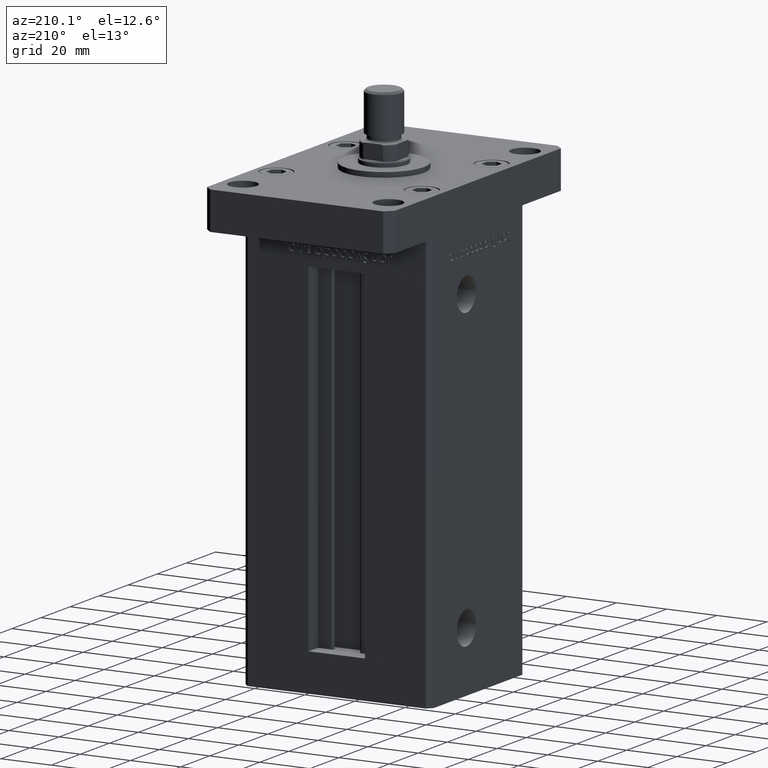
[diagram: clean part render]
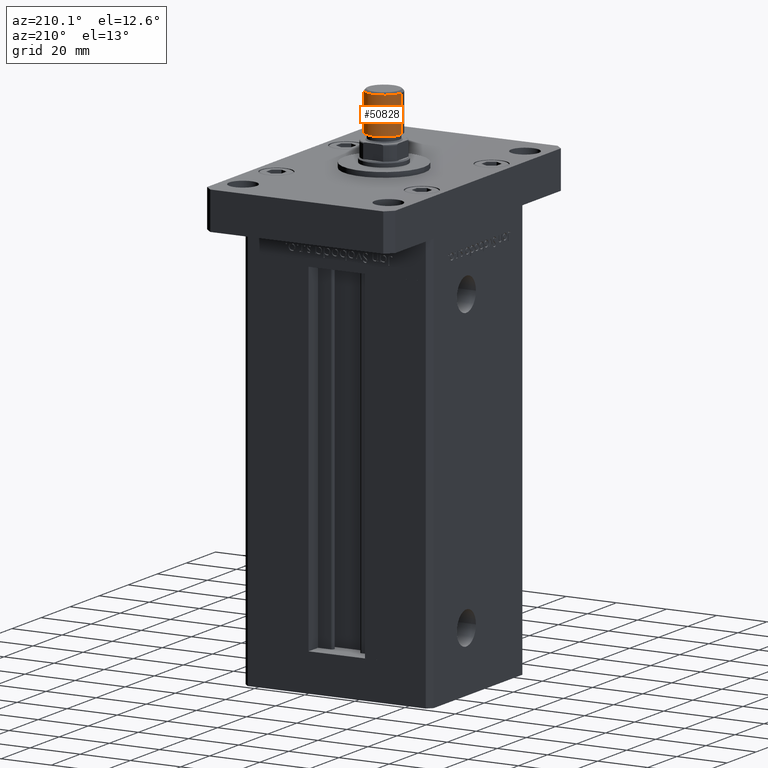
[diagram: same view with one face highlighted and labeled with its STEP entity id]
A machine part, auxiliary view. The second image highlights one B-rep face of the part: STEP entity #50828.
In plain terms, the highlighted cylindrical surface (edge-blend (fillet) strip) has radius 7 mm, axis along (-0, 0, 1).
Its self-contained STEP definition (entity closure, byte-faithful):
#2062 = EDGE_CURVE ( 'NONE', #48687, #9628, #6065, .T. ) ;
#2148 = CIRCLE ( 'NONE', #21380, 7.000000000000000000 ) ;
#6065 = LINE ( 'NONE', #30364, #35634 ) ;
#7193 = CYLINDRICAL_SURFACE ( 'NONE', #40468, 7.000000000000000000 ) ;
#7405 = CIRCLE ( 'NONE', #13472, 7.000000000000000000 ) ;
#9357 = EDGE_LOOP ( 'NONE', ( #17165, #19043, #32503, #26349 ) ) ;
#9628 = VERTEX_POINT ( 'NONE', #51424 ) ;
#11530 = VERTEX_POINT ( 'NONE', #36846 ) ;
#11647 = DIRECTION ( 'NONE',  ( 1.000000000000000000, 0.000000000000000000, 0.000000000000000000 ) ) ;
#11801 = EDGE_CURVE ( 'NONE', #11530, #26035, #12728, .T. ) ;
#12728 = LINE ( 'NONE', #50408, #35907 ) ;
#12826 = DIRECTION ( 'NONE',  ( -0.000000000000000000, -0.000000000000000000, 1.000000000000000000 ) ) ;
#12996 = DIRECTION ( 'NONE',  ( -0.000000000000000000, -0.000000000000000000, -1.000000000000000000 ) ) ;
#13472 = AXIS2_PLACEMENT_3D ( 'NONE', #16111, #12826, #32774 ) ;
#15122 = FACE_OUTER_BOUND ( 'NONE', #9357, .T. ) ;
#16111 = CARTESIAN_POINT ( 'NONE',  ( 0.000000000000000000, 0.000000000000000000, 0.8000000000000020428 ) ) ;
#17165 = ORIENTED_EDGE ( 'NONE', *, *, #25585, .F. ) ;
#19043 = ORIENTED_EDGE ( 'NONE', *, *, #11801, .T. ) ;
#19244 = CARTESIAN_POINT ( 'NONE',  ( 7.000000000000000000, 8.572527594031473190E-16, 0.8000000000000020428 ) ) ;
#21380 = AXIS2_PLACEMENT_3D ( 'NONE', #24487, #44438, #11647 ) ;
#21732 = CARTESIAN_POINT ( 'NONE',  ( -7.000000000000000000, 0.000000000000000000, 15.50000000000000000 ) ) ;
#23858 = DIRECTION ( 'NONE',  ( -0.000000000000000000, -0.000000000000000000, -1.000000000000000000 ) ) ;
#24487 = CARTESIAN_POINT ( 'NONE',  ( 0.000000000000000000, 0.000000000000000000, 15.50000000000000000 ) ) ;
#25585 = EDGE_CURVE ( 'NONE', #11530, #48687, #2148, .T. ) ;
#26035 = VERTEX_POINT ( 'NONE', #19244 ) ;
#26349 = ORIENTED_EDGE ( 'NONE', *, *, #2062, .F. ) ;
#27417 = DIRECTION ( 'NONE',  ( -1.000000000000000000, 0.000000000000000000, 0.000000000000000000 ) ) ;
#27957 = CARTESIAN_POINT ( 'NONE',  ( 0.000000000000000000, 0.000000000000000000, 15.50000000000000000 ) ) ;
#30364 = CARTESIAN_POINT ( 'NONE',  ( -7.000000000000000000, 0.000000000000000000, 15.50000000000000000 ) ) ;
#32503 = ORIENTED_EDGE ( 'NONE', *, *, #53863, .T. ) ;
#32774 = DIRECTION ( 'NONE',  ( 1.000000000000000000, 0.000000000000000000, 0.000000000000000000 ) ) ;
#35634 = VECTOR ( 'NONE', #48118, 1000.000000000000000 ) ;
#35907 = VECTOR ( 'NONE', #12996, 1000.000000000000000 ) ;
#36846 = CARTESIAN_POINT ( 'NONE',  ( 7.000000000000000000, 8.572527594031473190E-16, 15.50000000000000000 ) ) ;
#40468 = AXIS2_PLACEMENT_3D ( 'NONE', #27957, #23858, #27417 ) ;
#44438 = DIRECTION ( 'NONE',  ( 0.000000000000000000, 0.000000000000000000, 1.000000000000000000 ) ) ;
#48118 = DIRECTION ( 'NONE',  ( -0.000000000000000000, -0.000000000000000000, -1.000000000000000000 ) ) ;
#48687 = VERTEX_POINT ( 'NONE', #21732 ) ;
#50408 = CARTESIAN_POINT ( 'NONE',  ( 7.000000000000000000, 8.572527594031473190E-16, 15.50000000000000000 ) ) ;
#50828 = ADVANCED_FACE ( 'NONE', ( #15122 ), #7193, .T. ) ;
#51424 = CARTESIAN_POINT ( 'NONE',  ( -7.000000000000000000, 0.000000000000000000, 0.8000000000000020428 ) ) ;
#53863 = EDGE_CURVE ( 'NONE', #26035, #9628, #7405, .T. ) ;